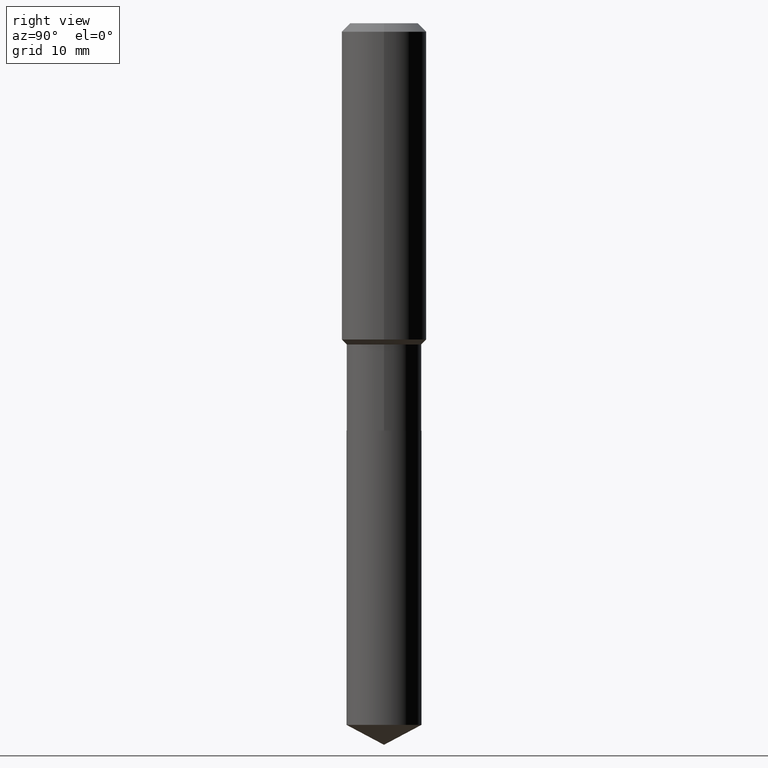
[diagram: clean part render]
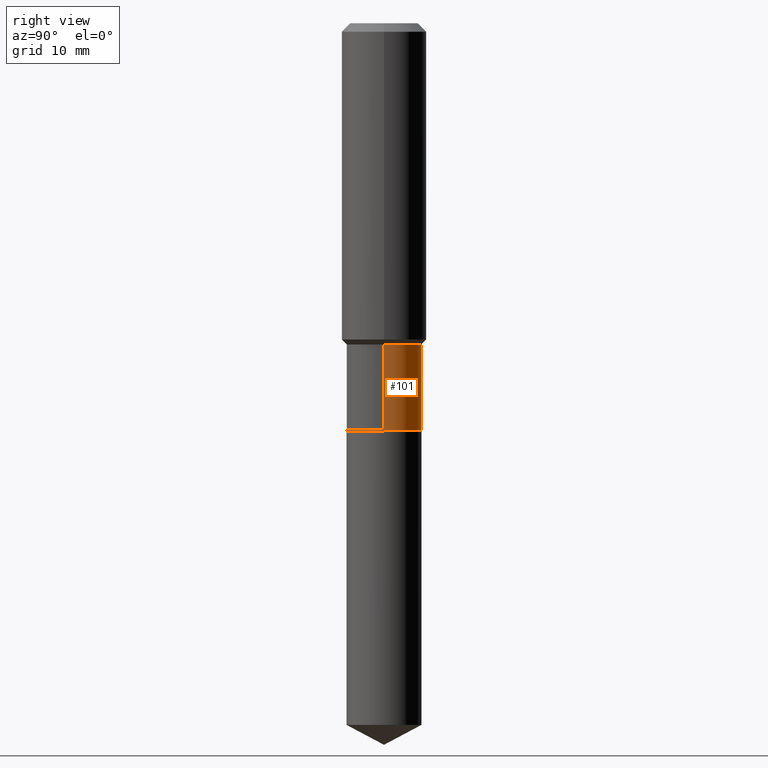
[diagram: same view with one face highlighted and labeled with its STEP entity id]
A machine part, right view. The second image highlights one B-rep face of the part: STEP entity #101.
In plain terms, the highlighted cylindrical surface (partial cylindrical patch) has radius 5.2997 mm, axis along (-0, 0, 1).
Its self-contained STEP definition (entity closure, byte-faithful):
#39 = CARTESIAN_POINT ( 'NONE',  ( 0.2086499999999999466, -7.698716352149130505E-15, -1.787699999999999845 ) ) ;
#61 = EDGE_CURVE ( 'NONE', #268, #65, #181, .T. ) ;
#65 = VERTEX_POINT ( 'NONE', #39 ) ;
#71 = AXIS2_PLACEMENT_3D ( 'NONE', #115, #184, #189 ) ;
#76 = DIRECTION ( 'NONE',  ( -2.445468806185136597E-29, 3.491481338843145583E-15, 1.000000000000000000 ) ) ;
#99 = VECTOR ( 'NONE', #136, 39.37007874015748143 ) ;
#101 = ADVANCED_FACE ( 'NONE', ( #359 ), #250, .T. ) ;
#115 = CARTESIAN_POINT ( 'NONE',  ( 5.544122330502323530E-29, -7.915537343291296237E-15, -2.267100000000000115 ) ) ;
#128 = VERTEX_POINT ( 'NONE', #409 ) ;
#136 = DIRECTION ( 'NONE',  ( -2.445468806185136877E-29, 3.491481338843145188E-15, 1.000000000000000000 ) ) ;
#151 = DIRECTION ( 'NONE',  ( 1.000000000000000000, -6.982962677686267499E-15, 0.000000000000000000 ) ) ;
#152 = EDGE_CURVE ( 'NONE', #65, #309, #444, .T. ) ;
#167 = ORIENTED_EDGE ( 'NONE', *, *, #172, .T. ) ;
#172 = EDGE_CURVE ( 'NONE', #268, #128, #272, .T. ) ;
#174 = CARTESIAN_POINT ( 'NONE',  ( -0.2086499999999999466, -5.596081848207143663E-15, -1.787699999999999845 ) ) ;
#181 = LINE ( 'NONE', #459, #401 ) ;
#184 = DIRECTION ( 'NONE',  ( -2.445468806185136597E-29, 3.491481338843145583E-15, 1.000000000000000000 ) ) ;
#189 = DIRECTION ( 'NONE',  ( 1.000000000000000000, -6.982962677686265922E-15, 0.000000000000000000 ) ) ;
#222 = CARTESIAN_POINT ( 'NONE',  ( -0.2086499999999999744, 1.482547418163448856E-15, -1.026335806581685820E-29 ) ) ;
#241 = EDGE_CURVE ( 'NONE', #128, #309, #288, .T. ) ;
#250 = CYLINDRICAL_SURFACE ( 'NONE', #314, 0.2086499999999999744 ) ;
#253 = DIRECTION ( 'NONE',  ( 1.000000000000000000, -6.982962677686266711E-15, 4.876176775795935793E-29 ) ) ;
#257 = DIRECTION ( 'NONE',  ( -2.445468806185136597E-29, 3.491481338843145583E-15, 1.000000000000000000 ) ) ;
#258 = CARTESIAN_POINT ( 'NONE',  ( 0.2086500000000000021, -9.372532505990534391E-15, -2.267100000000000115 ) ) ;
#261 = CARTESIAN_POINT ( 'NONE',  ( 0.000000000000000000, 0.000000000000000000, 0.000000000000000000 ) ) ;
#268 = VERTEX_POINT ( 'NONE', #258 ) ;
#272 = CIRCLE ( 'NONE', #71, 0.2086500000000000021 ) ;
#288 = LINE ( 'NONE', #222, #99 ) ;
#292 = CARTESIAN_POINT ( 'NONE',  ( 4.371764584817168227E-29, -6.241721189449890773E-15, -1.787699999999999845 ) ) ;
#309 = VERTEX_POINT ( 'NONE', #174 ) ;
#314 = AXIS2_PLACEMENT_3D ( 'NONE', #261, #76, #253 ) ;
#340 = ORIENTED_EDGE ( 'NONE', *, *, #61, .F. ) ;
#359 = FACE_OUTER_BOUND ( 'NONE', #389, .T. ) ;
#382 = ORIENTED_EDGE ( 'NONE', *, *, #152, .F. ) ;
#389 = EDGE_LOOP ( 'NONE', ( #167, #429, #382, #340 ) ) ;
#401 = VECTOR ( 'NONE', #412, 39.37007874015748143 ) ;
#409 = CARTESIAN_POINT ( 'NONE',  ( -0.2086500000000000021, -5.596081848207143663E-15, -2.267100000000000115 ) ) ;
#412 = DIRECTION ( 'NONE',  ( -2.445468806185136877E-29, 3.491481338843145188E-15, 1.000000000000000000 ) ) ;
#424 = AXIS2_PLACEMENT_3D ( 'NONE', #292, #257, #151 ) ;
#429 = ORIENTED_EDGE ( 'NONE', *, *, #241, .T. ) ;
#444 = CIRCLE ( 'NONE', #424, 0.2086499999999999466 ) ;
#459 = CARTESIAN_POINT ( 'NONE',  ( 0.2086499999999999744, -1.456995162699239338E-15, 1.017414284269821845E-29 ) ) ;